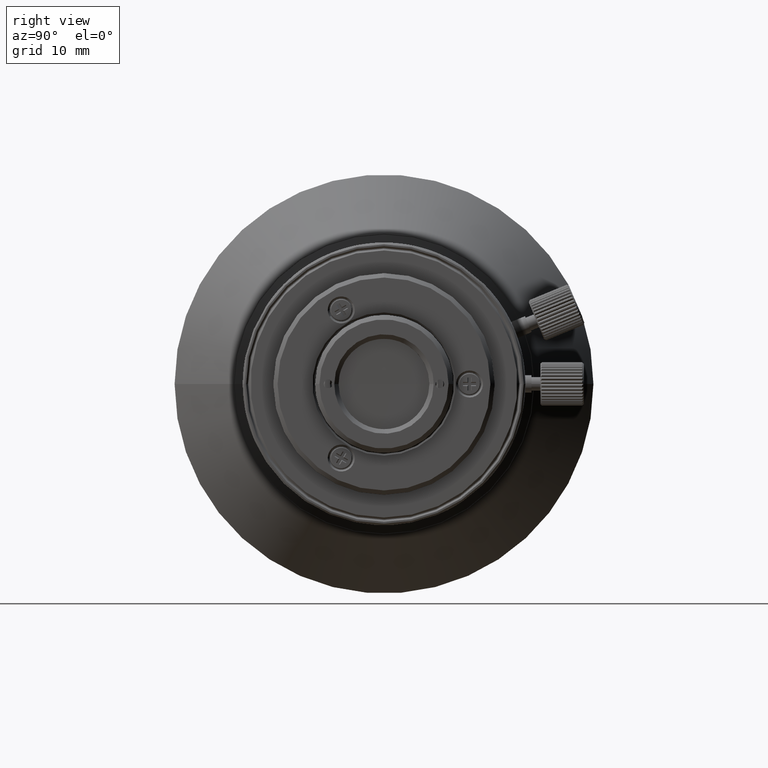
[diagram: clean part render]
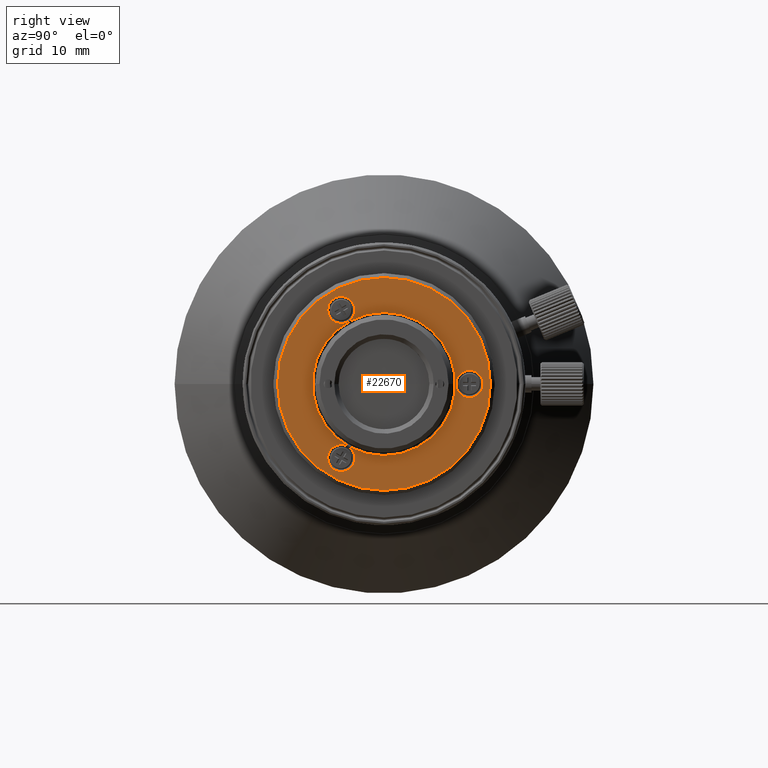
[diagram: same view with one face highlighted and labeled with its STEP entity id]
A machine part, right view. The second image highlights one B-rep face of the part: STEP entity #22670.
In plain terms, the highlighted planar face has unit normal (1, 0, 0).
Its self-contained STEP definition (entity closure, byte-faithful):
#233 = AXIS2_PLACEMENT_3D ( 'NONE', #14081, #51559, #57916 ) ;
#1049 = EDGE_CURVE ( 'NONE', #61669, #5424, #84621, .T. ) ;
#1195 = FACE_BOUND ( 'NONE', #96434, .T. ) ;
#1918 = EDGE_LOOP ( 'NONE', ( #45589, #43712 ) ) ;
#3587 = CARTESIAN_POINT ( 'NONE',  ( 25.44276785900999727, 0.000000000000000000, 0.000000000000000000 ) ) ;
#3746 = AXIS2_PLACEMENT_3D ( 'NONE', #65239, #44305, #74006 ) ;
#5052 = DIRECTION ( 'NONE',  ( 1.000000000000000000, -1.323385845352999996E-12, -7.382926257372770344E-23 ) ) ;
#5382 = AXIS2_PLACEMENT_3D ( 'NONE', #7818, #66216, #29738 ) ;
#5424 = VERTEX_POINT ( 'NONE', #90669 ) ;
#6668 = CARTESIAN_POINT ( 'NONE',  ( 25.44276785900999727, 9.799999999999998934, 0.000000000000000000 ) ) ;
#7818 = CARTESIAN_POINT ( 'NONE',  ( 25.44276785900999727, 2.078337502097999714E-13, 0.000000000000000000 ) ) ;
#7937 = AXIS2_PLACEMENT_3D ( 'NONE', #59657, #68849, #45989 ) ;
#11667 = DIRECTION ( 'NONE',  ( -1.000000000000000000, 2.060088924300185153E-12, -7.546716364352470879E-13 ) ) ;
#12182 = CARTESIAN_POINT ( 'NONE',  ( 25.44276785900999727, -1.166481213339000054E-09, 12.20000000002000107 ) ) ;
#14081 = CARTESIAN_POINT ( 'NONE',  ( 25.44276785900999727, -4.900000000000999556, -8.487048957088997980 ) ) ;
#14183 = VERTEX_POINT ( 'NONE', #46175 ) ;
#14408 = CARTESIAN_POINT ( 'NONE',  ( 25.44276785900999727, 9.799999977830001541, -1.550000000000000044 ) ) ;
#16203 = ORIENTED_EDGE ( 'NONE', *, *, #59720, .T. ) ;
#17264 = EDGE_CURVE ( 'NONE', #42177, #14183, #30273, .T. ) ;
#18844 = EDGE_CURVE ( 'NONE', #56974, #60883, #44132, .T. ) ;
#20123 = ORIENTED_EDGE ( 'NONE', *, *, #46282, .T. ) ;
#21428 = EDGE_CURVE ( 'NONE', #46797, #26321, #75390, .T. ) ;
#21452 = CARTESIAN_POINT ( 'NONE',  ( 25.44276785901999816, 7.309708393989000714E-13, 0.000000000000000000 ) ) ;
#21944 = DIRECTION ( 'NONE',  ( 0.000000000000000000, -5.578816097585998774E-11, 1.000000000000000000 ) ) ;
#22422 = CARTESIAN_POINT ( 'NONE',  ( 25.44276785900999727, -4.899999999999999467, 8.487048957086999579 ) ) ;
#22642 = FACE_BOUND ( 'NONE', #39772, .T. ) ;
#22670 = ADVANCED_FACE ( 'NONE', ( #89369, #22642, #52334, #1195, #30898 ), #60592, .T. ) ;
#23476 = AXIS2_PLACEMENT_3D ( 'NONE', #21452, #5052, #21944 ) ;
#26321 = VERTEX_POINT ( 'NONE', #31517 ) ;
#26456 = DIRECTION ( 'NONE',  ( 1.000000000000000000, 0.000000000000000000, 0.000000000000000000 ) ) ;
#27570 = DIRECTION ( 'NONE',  ( 0.000000000000000000, -0.8660254037844971053, -0.4999999999998988032 ) ) ;
#28418 = VERTEX_POINT ( 'NONE', #39507 ) ;
#28582 = DIRECTION ( 'NONE',  ( -1.000000000000000000, 1.776356839400000238E-14, 4.071540155979529638E-28 ) ) ;
#29738 = DIRECTION ( 'NONE',  ( 0.000000000000000000, -2.534557929387999943E-14, 1.000000000000000000 ) ) ;
#30273 = CIRCLE ( 'NONE', #5382, 8.200000000000001066 ) ;
#30846 = DIRECTION ( 'NONE',  ( -1.000000000000000000, -1.776356839400000238E-14, -4.682271179375919730E-28 ) ) ;
#30898 = FACE_BOUND ( 'NONE', #1918, .T. ) ;
#31517 = CARTESIAN_POINT ( 'NONE',  ( 25.44276785900999727, 9.800000022169999880, 1.550000000000000044 ) ) ;
#33751 = CARTESIAN_POINT ( 'NONE',  ( 25.44276785900999727, -2.692304719606000054E-09, 8.200000000000001066 ) ) ;
#34842 = EDGE_CURVE ( 'NONE', #14183, #42177, #59216, .T. ) ;
#39507 = CARTESIAN_POINT ( 'NONE',  ( 25.44276785900999727, 1.017826278341000114E-09, -12.20000000002000107 ) ) ;
#39772 = EDGE_LOOP ( 'NONE', ( #49900, #76177 ) ) ;
#41514 = DIRECTION ( 'NONE',  ( 0.000000000000000000, 1.000000000000000000, 0.000000000000000000 ) ) ;
#42077 = CIRCLE ( 'NONE', #43681, 1.550000000000000044 ) ;
#42177 = VERTEX_POINT ( 'NONE', #33751 ) ;
#43681 = AXIS2_PLACEMENT_3D ( 'NONE', #46391, #30846, #53244 ) ;
#43712 = ORIENTED_EDGE ( 'NONE', *, *, #34842, .T. ) ;
#44132 = CIRCLE ( 'NONE', #78342, 1.549999999999999378 ) ;
#44305 = DIRECTION ( 'NONE',  ( 1.000000000000000000, -1.385558334731999876E-12, -7.706443740086490239E-23 ) ) ;
#45498 = ORIENTED_EDGE ( 'NONE', *, *, #1049, .T. ) ;
#45589 = ORIENTED_EDGE ( 'NONE', *, *, #17264, .T. ) ;
#45989 = DIRECTION ( 'NONE',  ( 0.000000000000000000, 2.491232152816999556E-14, -1.000000000000000000 ) ) ;
#46175 = CARTESIAN_POINT ( 'NONE',  ( 25.44276785900999727, 2.692309680246999856E-09, -8.200000000000001066 ) ) ;
#46282 = EDGE_CURVE ( 'NONE', #66190, #28418, #60784, .T. ) ;
#46391 = CARTESIAN_POINT ( 'NONE',  ( 25.44276785900999727, 9.799999999999998934, 0.000000000000000000 ) ) ;
#46797 = VERTEX_POINT ( 'NONE', #14408 ) ;
#47255 = AXIS2_PLACEMENT_3D ( 'NONE', #49113, #11667, #88077 ) ;
#49113 = CARTESIAN_POINT ( 'NONE',  ( 25.44276785900999727, -4.899999999999999467, -8.487048957086999579 ) ) ;
#49900 = ORIENTED_EDGE ( 'NONE', *, *, #21428, .T. ) ;
#50649 = EDGE_CURVE ( 'NONE', #5424, #61669, #95127, .T. ) ;
#51559 = DIRECTION ( 'NONE',  ( -1.000000000000000000, 3.335000002958925042E-13, 2.406713471079755138E-12 ) ) ;
#52123 = DIRECTION ( 'NONE',  ( -1.000000000000000000, -7.480225725612600633E-13, 1.295613100883753972E-12 ) ) ;
#52334 = FACE_BOUND ( 'NONE', #96163, .T. ) ;
#53244 = DIRECTION ( 'NONE',  ( 0.000000000000000000, -2.686023446673765844E-14, 1.000000000000000000 ) ) ;
#56785 = DIRECTION ( 'NONE',  ( -1.000000000000000000, 5.888308571185629841E-13, -1.019884961593958065E-12 ) ) ;
#56974 = VERTEX_POINT ( 'NONE', #77875 ) ;
#57916 = DIRECTION ( 'NONE',  ( -9.154863247407179234E-13, 0.8660254037841630392, -0.5000000000004775069 ) ) ;
#58417 = AXIS2_PLACEMENT_3D ( 'NONE', #3587, #26456, #41514 ) ;
#59216 = CIRCLE ( 'NONE', #7937, 8.200000000000001066 ) ;
#59512 = EDGE_CURVE ( 'NONE', #28418, #66190, #90867, .T. ) ;
#59657 = CARTESIAN_POINT ( 'NONE',  ( 25.44276785900999727, -2.042810365309999753E-13, 0.000000000000000000 ) ) ;
#59720 = EDGE_CURVE ( 'NONE', #60883, #56974, #95527, .T. ) ;
#60592 = PLANE ( 'NONE',  #58417 ) ;
#60784 = CIRCLE ( 'NONE', #23476, 12.20000000000000107 ) ;
#60883 = VERTEX_POINT ( 'NONE', #84873 ) ;
#61669 = VERTEX_POINT ( 'NONE', #86310 ) ;
#64321 = EDGE_LOOP ( 'NONE', ( #20123, #81053 ) ) ;
#65239 = CARTESIAN_POINT ( 'NONE',  ( 25.44276785899999638, 1.343813949021999850E-12, 0.000000000000000000 ) ) ;
#66190 = VERTEX_POINT ( 'NONE', #12182 ) ;
#66216 = DIRECTION ( 'NONE',  ( -1.000000000000000000, -1.332267629550000100E-14, -3.376709484542904816E-28 ) ) ;
#68849 = DIRECTION ( 'NONE',  ( -1.000000000000000000, 1.776356839400000238E-14, 4.425317273189664478E-28 ) ) ;
#72856 = DIRECTION ( 'NONE',  ( 0.000000000000000000, 2.238352872228137993E-14, -1.000000000000000000 ) ) ;
#74006 = DIRECTION ( 'NONE',  ( 0.000000000000000000, 5.561977108366999869E-11, -1.000000000000000000 ) ) ;
#75390 = CIRCLE ( 'NONE', #76929, 1.550000000000000044 ) ;
#76177 = ORIENTED_EDGE ( 'NONE', *, *, #90087, .T. ) ;
#76929 = AXIS2_PLACEMENT_3D ( 'NONE', #6668, #28582, #72856 ) ;
#77875 = CARTESIAN_POINT ( 'NONE',  ( 25.44276785900999727, -3.557660613049999920, 9.262048937888000211 ) ) ;
#78342 = AXIS2_PLACEMENT_3D ( 'NONE', #22422, #52123, #81828 ) ;
#81053 = ORIENTED_EDGE ( 'NONE', *, *, #59512, .T. ) ;
#81828 = DIRECTION ( 'NONE',  ( 0.000000000000000000, 0.8660254037843172492, 0.5000000000002103873 ) ) ;
#84132 = ORIENTED_EDGE ( 'NONE', *, *, #50649, .T. ) ;
#84613 = AXIS2_PLACEMENT_3D ( 'NONE', #94777, #56785, #27570 ) ;
#84621 = CIRCLE ( 'NONE', #47255, 1.549999999999999822 ) ;
#84873 = CARTESIAN_POINT ( 'NONE',  ( 25.44276785900999727, -6.242339386949999458, 7.712048976286999036 ) ) ;
#86310 = CARTESIAN_POINT ( 'NONE',  ( 25.44276785900999727, -6.242339364781000377, -7.712048937886999411 ) ) ;
#88077 = DIRECTION ( 'NONE',  ( -2.162248874572381709E-12, -0.8660254037836910834, 0.5000000000012947421 ) ) ;
#89369 = FACE_OUTER_BOUND ( 'NONE', #64321, .T. ) ;
#90087 = EDGE_CURVE ( 'NONE', #26321, #46797, #42077, .T. ) ;
#90589 = ORIENTED_EDGE ( 'NONE', *, *, #18844, .T. ) ;
#90669 = CARTESIAN_POINT ( 'NONE',  ( 25.44276785900999727, -3.557660635219999978, -9.262048976287999835 ) ) ;
#90867 = CIRCLE ( 'NONE', #3746, 12.20000000000000107 ) ;
#94777 = CARTESIAN_POINT ( 'NONE',  ( 25.44276785900999727, -4.899999999999999467, 8.487048957087999668 ) ) ;
#95127 = CIRCLE ( 'NONE', #233, 1.550000000000999911 ) ;
#95527 = CIRCLE ( 'NONE', #84613, 1.550000000000999911 ) ;
#96163 = EDGE_LOOP ( 'NONE', ( #16203, #90589 ) ) ;
#96434 = EDGE_LOOP ( 'NONE', ( #84132, #45498 ) ) ;